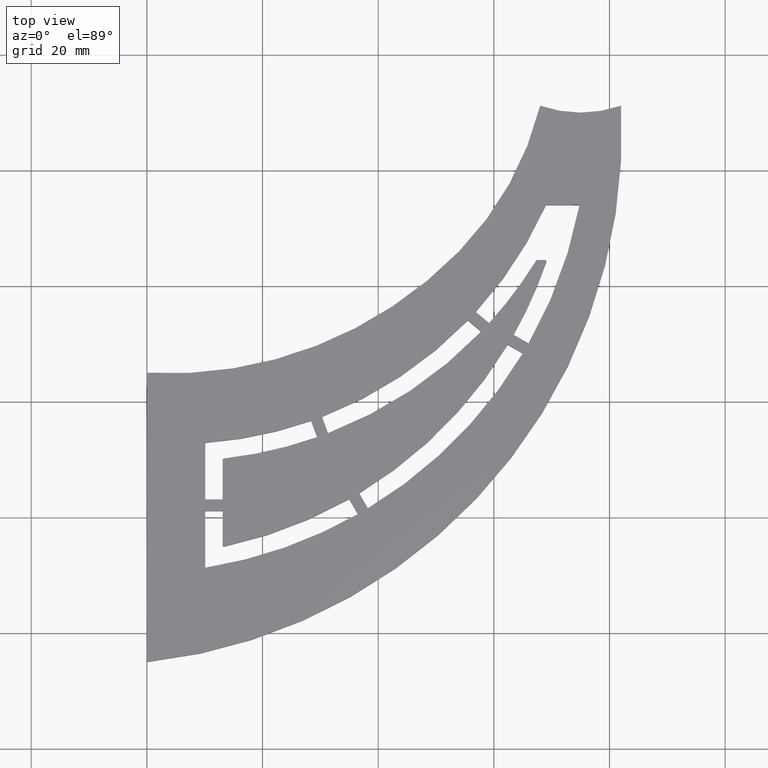
[diagram: clean part render]
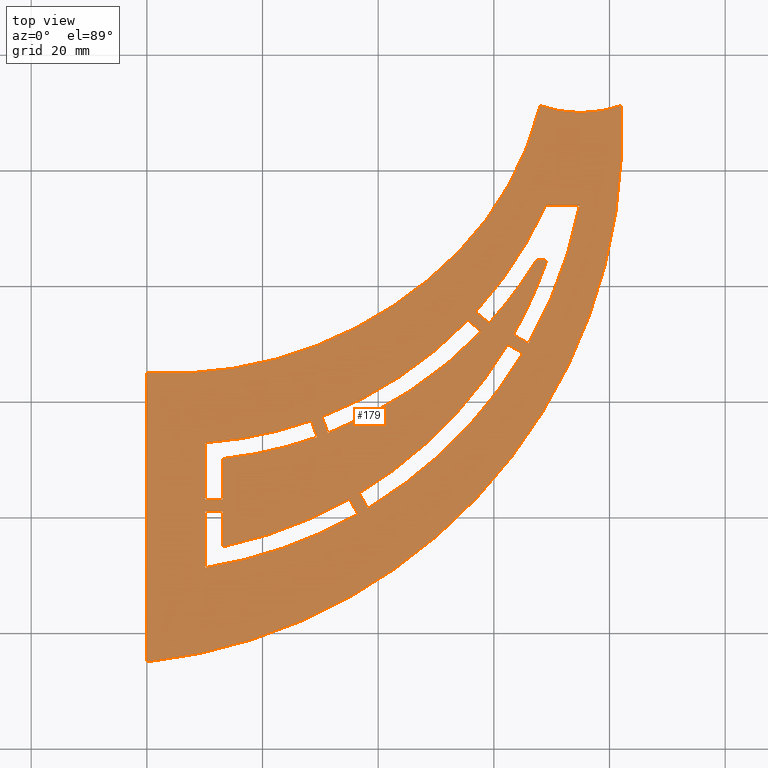
[diagram: same view with one face highlighted and labeled with its STEP entity id]
A machine part, top view. The second image highlights one B-rep face of the part: STEP entity #179.
In plain terms, the highlighted planar face has unit normal (-0, 0, 1).
Its self-contained STEP definition (entity closure, byte-faithful):
#9 = DIRECTION ( 'NONE',  ( 0.7683469671252992628, -0.6400335445188434225, 0.000000000000000000 ) ) ;
#10 = LINE ( 'NONE', #7282, #5770 ) ;
#41 = DIRECTION ( 'NONE',  ( 1.000000000000000000, 0.000000000000000000, 0.000000000000000000 ) ) ;
#70 = AXIS2_PLACEMENT_3D ( 'NONE', #876, #833, #13025 ) ;
#149 = DIRECTION ( 'NONE',  ( 1.000000000000000000, 0.000000000000000000, 0.000000000000000000 ) ) ;
#179 = ADVANCED_FACE ( 'NONE', ( #3742, #5994, #5669, #7091, #532, #6308 ), #4835, .T. ) ;
#285 = VERTEX_POINT ( 'NONE', #1906 ) ;
#294 = ORIENTED_EDGE ( 'NONE', *, *, #1183, .T. ) ;
#468 = DIRECTION ( 'NONE',  ( -0.000000000000000000, 0.000000000000000000, 1.000000000000000000 ) ) ;
#532 = FACE_BOUND ( 'NONE', #7960, .T. ) ;
#535 = CARTESIAN_POINT ( 'NONE',  ( 29.35089577854461496, 16.94574757869946424, 2.000000000000000000 ) ) ;
#566 = CIRCLE ( 'NONE', #2564, 69.99999999999997158 ) ;
#629 = VECTOR ( 'NONE', #12655, 1000.000000000000000 ) ;
#639 = CIRCLE ( 'NONE', #12659, 78.49999999999998579 ) ;
#687 = VERTEX_POINT ( 'NONE', #2851 ) ;
#703 = VERTEX_POINT ( 'NONE', #3801 ) ;
#710 = CIRCLE ( 'NONE', #6989, 75.50000000277350409 ) ;
#804 = CARTESIAN_POINT ( 'NONE',  ( 57.81112312110057871, 32.14023218370341795, 2.000000000000000000 ) ) ;
#833 = DIRECTION ( 'NONE',  ( -0.000000000000000000, 0.000000000000000000, 1.000000000000000000 ) ) ;
#876 = CARTESIAN_POINT ( 'NONE',  ( 13.35000000000025011, 9.933913978657852084, 2.000000000000000000 ) ) ;
#921 = EDGE_CURVE ( 'NONE', #5424, #11897, #2658, .T. ) ;
#958 = CARTESIAN_POINT ( 'NONE',  ( 13.32211758407314939, 10.18235425494592938, 2.000000000000000000 ) ) ;
#1004 = EDGE_CURVE ( 'NONE', #5699, #8205, #9367, .T. ) ;
#1132 = CARTESIAN_POINT ( 'NONE',  ( 32.31563232537948238, 11.89347446114490836, 2.000000000000000000 ) ) ;
#1149 = ORIENTED_EDGE ( 'NONE', *, *, #1004, .T. ) ;
#1164 = ORIENTED_EDGE ( 'NONE', *, *, #1327, .F. ) ;
#1183 = EDGE_CURVE ( 'NONE', #9576, #2364, #7441, .T. ) ;
#1249 = DIRECTION ( 'NONE',  ( 1.000000000000000000, 0.000000000000000000, 0.000000000000000000 ) ) ;
#1269 = DIRECTION ( 'NONE',  ( -0.5000000000000005551, 0.8660254037844382635, 0.000000000000000000 ) ) ;
#1327 = EDGE_CURVE ( 'NONE', #12236, #687, #4574, .T. ) ;
#1342 = VERTEX_POINT ( 'NONE', #8229 ) ;
#1421 = LINE ( 'NONE', #1508, #5745 ) ;
#1501 = VERTEX_POINT ( 'NONE', #9712 ) ;
#1508 = CARTESIAN_POINT ( 'NONE',  ( 13.09999999999989306, -4.356155149773243477E-13, 2.000000000000000000 ) ) ;
#1609 = DIRECTION ( 'NONE',  ( -0.000000000000000000, 0.000000000000000000, 1.000000000000000000 ) ) ;
#1697 = LINE ( 'NONE', #8212, #6181 ) ;
#1712 = CIRCLE ( 'NONE', #11845, 78.50000000000000000 ) ;
#1763 = EDGE_CURVE ( 'NONE', #4784, #8075, #1697, .T. ) ;
#1803 = AXIS2_PLACEMENT_3D ( 'NONE', #13196, #7146, #11136 ) ;
#1832 = VECTOR ( 'NONE', #1889, 1000.000000000000000 ) ;
#1840 = CARTESIAN_POINT ( 'NONE',  ( 81.99999999999997158, 71.18900302333739205, 2.000000000000000000 ) ) ;
#1889 = DIRECTION ( 'NONE',  ( 0.8660254037844365982, -0.5000000000000036637, 0.000000000000000000 ) ) ;
#1906 = CARTESIAN_POINT ( 'NONE',  ( 65.00000000000001421, 28.36591682216534593, 2.000000000000000000 ) ) ;
#1910 = VERTEX_POINT ( 'NONE', #13230 ) ;
#2056 = CIRCLE ( 'NONE', #12426, 70.00000000000000000 ) ;
#2060 = EDGE_CURVE ( 'NONE', #5699, #285, #5066, .T. ) ;
#2077 = DIRECTION ( 'NONE',  ( -0.000000000000000000, 0.000000000000000000, 1.000000000000000000 ) ) ;
#2105 = CARTESIAN_POINT ( 'NONE',  ( 62.40149663089107435, 29.86616344181055283, 2.000000000000000000 ) ) ;
#2156 = VERTEX_POINT ( 'NONE', #958 ) ;
#2159 = DIRECTION ( 'NONE',  ( 0.7683469671253021493, -0.6400335445188398698, 0.000000000000000000 ) ) ;
#2167 = EDGE_CURVE ( 'NONE', #1342, #12236, #8083, .T. ) ;
#2196 = VERTEX_POINT ( 'NONE', #3885 ) ;
#2198 = ORIENTED_EDGE ( 'NONE', *, *, #3383, .T. ) ;
#2286 = CARTESIAN_POINT ( 'NONE',  ( 5.180452133363093736, 82.72691493104838401, 2.000000000000000000 ) ) ;
#2319 = VERTEX_POINT ( 'NONE', #12378 ) ;
#2326 = VERTEX_POINT ( 'NONE', #10431 ) ;
#2364 = VERTEX_POINT ( 'NONE', #4208 ) ;
#2389 = EDGE_CURVE ( 'NONE', #12120, #4437, #5542, .T. ) ;
#2403 = EDGE_CURVE ( 'NONE', #2196, #9903, #10359, .T. ) ;
#2517 = ORIENTED_EDGE ( 'NONE', *, *, #11708, .F. ) ;
#2524 = ORIENTED_EDGE ( 'NONE', *, *, #5312, .F. ) ;
#2564 = AXIS2_PLACEMENT_3D ( 'NONE', #10817, #1609, #3793 ) ;
#2568 = EDGE_CURVE ( 'NONE', #4784, #1501, #3128, .T. ) ;
#2586 = DIRECTION ( 'NONE',  ( 3.325309274636090619E-14, 1.000000000000000000, 0.000000000000000000 ) ) ;
#2658 = LINE ( 'NONE', #11905, #10194 ) ;
#2723 = DIRECTION ( 'NONE',  ( 1.000000000000000000, 0.000000000000000000, 0.000000000000000000 ) ) ;
#2767 = ORIENTED_EDGE ( 'NONE', *, *, #7306, .F. ) ;
#2851 = CARTESIAN_POINT ( 'NONE',  ( 67.29820635819267238, 44.38132052877488576, 2.000000000000000000 ) ) ;
#3010 = ORIENTED_EDGE ( 'NONE', *, *, #2167, .F. ) ;
#3012 = ORIENTED_EDGE ( 'NONE', *, *, #2389, .F. ) ;
#3051 = ORIENTED_EDGE ( 'NONE', *, *, #8481, .F. ) ;
#3064 = CARTESIAN_POINT ( 'NONE',  ( 38.22629435678329912, 1.573106303765562597, 2.000000000000000000 ) ) ;
#3128 = CIRCLE ( 'NONE', #7107, 75.50000000277351830 ) ;
#3174 = DIRECTION ( 'NONE',  ( -0.000000000000000000, 0.000000000000000000, 1.000000000000000000 ) ) ;
#3380 = DIRECTION ( 'NONE',  ( 1.000000000000000000, 0.000000000000000000, 0.000000000000000000 ) ) ;
#3383 = EDGE_CURVE ( 'NONE', #8205, #8633, #710, .T. ) ;
#3478 = ORIENTED_EDGE ( 'NONE', *, *, #4603, .T. ) ;
#3499 = AXIS2_PLACEMENT_3D ( 'NONE', #7904, #3896, #9980 ) ;
#3526 = DIRECTION ( 'NONE',  ( 1.000000000000000000, 0.000000000000000000, 0.000000000000000000 ) ) ;
#3627 = EDGE_CURVE ( 'NONE', #2326, #3959, #13028, .T. ) ;
#3666 = DIRECTION ( 'NONE',  ( -0.000000000000000000, 0.000000000000000000, 1.000000000000000000 ) ) ;
#3742 = FACE_BOUND ( 'NONE', #5103, .T. ) ;
#3793 = DIRECTION ( 'NONE',  ( 1.000000000000000000, 0.000000000000000000, 0.000000000000000000 ) ) ;
#3801 = CARTESIAN_POINT ( 'NONE',  ( 30.29382913315705039, 17.38689430305788974, 2.000000000000000000 ) ) ;
#3814 = DIRECTION ( 'NONE',  ( 0.3453912201918108438, -0.9384587923901678286, 0.000000000000000000 ) ) ;
#3822 = DIRECTION ( 'NONE',  ( 1.000000000000000000, 0.000000000000000000, 0.000000000000000000 ) ) ;
#3885 = CARTESIAN_POINT ( 'NONE',  ( 10.09999999999999964, 3.100000000000001865, 2.000000000000000000 ) ) ;
#3896 = DIRECTION ( 'NONE',  ( -0.000000000000000000, 0.000000000000000000, 1.000000000000000000 ) ) ;
#3933 = EDGE_CURVE ( 'NONE', #1910, #4926, #10945, .T. ) ;
#3952 = DIRECTION ( 'NONE',  ( 1.000000000000000000, 0.000000000000000000, 0.000000000000000000 ) ) ;
#3959 = VERTEX_POINT ( 'NONE', #6164 ) ;
#4046 = CARTESIAN_POINT ( 'NONE',  ( 31.33010419547926872, 14.57124240828424711, 2.000000000000000000 ) ) ;
#4057 = LINE ( 'NONE', #13102, #1832 ) ;
#4070 = DIRECTION ( 'NONE',  ( 1.000000000000000000, 0.000000000000000000, 0.000000000000000000 ) ) ;
#4120 = VERTEX_POINT ( 'NONE', #8192 ) ;
#4167 = DIRECTION ( 'NONE',  ( 0.3453912201917184177, -0.9384587923902019124, 0.000000000000000000 ) ) ;
#4208 = CARTESIAN_POINT ( 'NONE',  ( 13.40190804038342876, -5.036072685718692377, 2.000000000000000000 ) ) ;
#4211 = AXIS2_PLACEMENT_3D ( 'NONE', #6155, #12363, #1249 ) ;
#4248 = EDGE_CURVE ( 'NONE', #8633, #285, #4057, .T. ) ;
#4260 = EDGE_CURVE ( 'NONE', #703, #12120, #12065, .T. ) ;
#4290 = LINE ( 'NONE', #9479, #12123 ) ;
#4297 = AXIS2_PLACEMENT_3D ( 'NONE', #6188, #8339, #10437 ) ;
#4386 = DIRECTION ( 'NONE',  ( -1.770125995894700956E-16, 1.000000000000000000, 0.000000000000000000 ) ) ;
#4437 = VERTEX_POINT ( 'NONE', #804 ) ;
#4468 = VERTEX_POINT ( 'NONE', #13137 ) ;
#4497 = CARTESIAN_POINT ( 'NONE',  ( -2.274320155918185815, 68.81855391245915143, 2.000000000000000000 ) ) ;
#4511 = CARTESIAN_POINT ( 'NONE',  ( 5.180452133363093736, 82.72691493104838401, 2.000000000000000000 ) ) ;
#4530 = DIRECTION ( 'NONE',  ( 1.000000000000000000, 0.000000000000000000, 0.000000000000000000 ) ) ;
#4540 = CARTESIAN_POINT ( 'NONE',  ( 10.09999999999999787, 12.90000000000000391, 2.000000000000000000 ) ) ;
#4574 = CIRCLE ( 'NONE', #12834, 73.00000000000001421 ) ;
#4603 = EDGE_CURVE ( 'NONE', #4468, #4926, #7088, .T. ) ;
#4739 = VECTOR ( 'NONE', #9, 999.9999999999998863 ) ;
#4784 = VERTEX_POINT ( 'NONE', #7094 ) ;
#4808 = CIRCLE ( 'NONE', #70, 0.2500000000000296985 ) ;
#4835 = PLANE ( 'NONE',  #3499 ) ;
#4926 = VERTEX_POINT ( 'NONE', #1840 ) ;
#5058 = CARTESIAN_POINT ( 'NONE',  ( 40.76751774609838463, 48.94055770309599041, 2.000000000000000000 ) ) ;
#5064 = CARTESIAN_POINT ( 'NONE',  ( -2.274320155918185815, 68.81855391245915143, 2.000000000000000000 ) ) ;
#5066 = CIRCLE ( 'NONE', #11233, 78.49999999999998579 ) ;
#5099 = ORIENTED_EDGE ( 'NONE', *, *, #11429, .F. ) ;
#5103 = EDGE_LOOP ( 'NONE', ( #6776, #8003, #2517, #294, #11101, #2767, #7338 ) ) ;
#5125 = CIRCLE ( 'NONE', #1803, 70.00000000000002842 ) ;
#5141 = EDGE_CURVE ( 'NONE', #1501, #12543, #11895, .T. ) ;
#5149 = CARTESIAN_POINT ( 'NONE',  ( 10.09999999999999964, 1.787827255853647886E-15, 2.000000000000000000 ) ) ;
#5182 = VERTEX_POINT ( 'NONE', #9557 ) ;
#5193 = VERTEX_POINT ( 'NONE', #5445 ) ;
#5203 = AXIS2_PLACEMENT_3D ( 'NONE', #7603, #9941, #3952 ) ;
#5269 = CIRCLE ( 'NONE', #4297, 55.00000000000000711 ) ;
#5312 = EDGE_CURVE ( 'NONE', #2156, #11248, #7076, .T. ) ;
#5323 = CARTESIAN_POINT ( 'NONE',  ( 13.10000000000022169, 9.933913978657852084, 2.000000000000000000 ) ) ;
#5405 = ORIENTED_EDGE ( 'NONE', *, *, #8080, .T. ) ;
#5419 = DIRECTION ( 'NONE',  ( 3.552713678800588651E-14, 1.000000000000000000, 0.000000000000000000 ) ) ;
#5424 = VERTEX_POINT ( 'NONE', #11501 ) ;
#5445 = CARTESIAN_POINT ( 'NONE',  ( 53.97457268643530881, 45.99999999999996447, 2.000000000000000000 ) ) ;
#5514 = CARTESIAN_POINT ( 'NONE',  ( 0.000000000000000000, 1.100000000000000311, 2.000000000000000000 ) ) ;
#5542 = CIRCLE ( 'NONE', #10129, 73.00000000000001421 ) ;
#5555 = ORIENTED_EDGE ( 'NONE', *, *, #2060, .F. ) ;
#5656 = DIRECTION ( 'NONE',  ( -0.000000000000000000, 0.000000000000000000, 1.000000000000000000 ) ) ;
#5669 = FACE_BOUND ( 'NONE', #9391, .T. ) ;
#5699 = VERTEX_POINT ( 'NONE', #3064 ) ;
#5745 = VECTOR ( 'NONE', #2586, 1000.000000000000000 ) ;
#5766 = CARTESIAN_POINT ( 'NONE',  ( 68.85196653942389844, 44.24999999999997868, 2.000000000000000000 ) ) ;
#5768 = VECTOR ( 'NONE', #1269, 1000.000000000000114 ) ;
#5770 = VECTOR ( 'NONE', #2159, 1000.000000000000000 ) ;
#5775 = DIRECTION ( 'NONE',  ( -0.000000000000000000, 0.000000000000000000, 1.000000000000000000 ) ) ;
#5915 = VECTOR ( 'NONE', #3814, 1000.000000000000114 ) ;
#5971 = VERTEX_POINT ( 'NONE', #8207 ) ;
#5994 = FACE_OUTER_BOUND ( 'NONE', #7337, .T. ) ;
#6091 = CARTESIAN_POINT ( 'NONE',  ( -2.274320155918185815, 68.81855391245915143, 2.000000000000000000 ) ) ;
#6105 = EDGE_CURVE ( 'NONE', #11500, #5193, #566, .T. ) ;
#6155 = CARTESIAN_POINT ( 'NONE',  ( 67.51093839320922996, 44.24999999999997868, 2.000000000000000000 ) ) ;
#6164 = CARTESIAN_POINT ( 'NONE',  ( 10.09999999999999964, 1.100000000000000311, 2.000000000000000000 ) ) ;
#6176 = CARTESIAN_POINT ( 'NONE',  ( 5.180452133363093736, 82.72691493104838401, 2.000000000000000000 ) ) ;
#6181 = VECTOR ( 'NONE', #7191, 1000.000000000000000 ) ;
#6188 = CARTESIAN_POINT ( 'NONE',  ( 14.61404249810564338, 84.41547426875771976, 2.000000000000000000 ) ) ;
#6211 = LINE ( 'NONE', #6438, #9047 ) ;
#6308 = FACE_BOUND ( 'NONE', #12403, .T. ) ;
#6389 = CARTESIAN_POINT ( 'NONE',  ( -4.481368979606760207E-16, 3.100000000000000977, 2.000000000000000000 ) ) ;
#6438 = CARTESIAN_POINT ( 'NONE',  ( 13.10000000000004228, 4.898666193980483286E-13, 2.000000000000000000 ) ) ;
#6445 = DIRECTION ( 'NONE',  ( -0.000000000000000000, 0.000000000000000000, 1.000000000000000000 ) ) ;
#6485 = VECTOR ( 'NONE', #12041, 1000.000000000000000 ) ;
#6491 = CARTESIAN_POINT ( 'NONE',  ( 1.998401444325281773E-12, 24.99999999999996803, 2.000000000000000000 ) ) ;
#6538 = DIRECTION ( 'NONE',  ( -0.000000000000000000, 0.000000000000000000, 1.000000000000000000 ) ) ;
#6555 = EDGE_CURVE ( 'NONE', #2156, #11410, #4808, .T. ) ;
#6628 = DIRECTION ( 'NONE',  ( 1.000000000000000000, 0.000000000000000000, 0.000000000000000000 ) ) ;
#6776 = ORIENTED_EDGE ( 'NONE', *, *, #3627, .T. ) ;
#6798 = VERTEX_POINT ( 'NONE', #12569 ) ;
#6961 = ORIENTED_EDGE ( 'NONE', *, *, #8670, .F. ) ;
#6989 = AXIS2_PLACEMENT_3D ( 'NONE', #6091, #10511, #7619 ) ;
#7001 = CARTESIAN_POINT ( 'NONE',  ( 74.81433309437242940, 54.00000000000000711, 2.000000000000000000 ) ) ;
#7010 = AXIS2_PLACEMENT_3D ( 'NONE', #4497, #6538, #4530 ) ;
#7055 = EDGE_CURVE ( 'NONE', #703, #5971, #5125, .T. ) ;
#7076 = CIRCLE ( 'NONE', #8961, 72.99999999999998579 ) ;
#7088 = CIRCLE ( 'NONE', #5203, 91.99999999999938893 ) ;
#7091 = FACE_BOUND ( 'NONE', #8089, .T. ) ;
#7094 = CARTESIAN_POINT ( 'NONE',  ( 63.41057880476433439, 31.59297065384886949, 2.000000000000000000 ) ) ;
#7107 = AXIS2_PLACEMENT_3D ( 'NONE', #8945, #11023, #3822 ) ;
#7146 = DIRECTION ( 'NONE',  ( -0.000000000000000000, 0.000000000000000000, 1.000000000000000000 ) ) ;
#7191 = DIRECTION ( 'NONE',  ( 0.8660254037844363761, -0.5000000000000041078, 0.000000000000000000 ) ) ;
#7282 = CARTESIAN_POINT ( 'NONE',  ( 39.48745065706042112, 47.40386376884549691, 2.000000000000000000 ) ) ;
#7306 = EDGE_CURVE ( 'NONE', #6798, #8861, #8785, .T. ) ;
#7337 = EDGE_LOOP ( 'NONE', ( #8130, #5099, #3478, #11323, #10711 ) ) ;
#7338 = ORIENTED_EDGE ( 'NONE', *, *, #12533, .F. ) ;
#7400 = DIRECTION ( 'NONE',  ( -3.739439842733181748E-14, 1.000000000000000000, 0.000000000000000000 ) ) ;
#7407 = ORIENTED_EDGE ( 'NONE', *, *, #4248, .T. ) ;
#7441 = CIRCLE ( 'NONE', #10301, 0.2500000000000366374 ) ;
#7503 = AXIS2_PLACEMENT_3D ( 'NONE', #8488, #9592, #3380 ) ;
#7505 = CARTESIAN_POINT ( 'NONE',  ( 2.302567471051777078E-13, 44.50000000000035527, 2.000000000000000000 ) ) ;
#7520 = AXIS2_PLACEMENT_3D ( 'NONE', #2286, #6445, #149 ) ;
#7537 = ORIENTED_EDGE ( 'NONE', *, *, #10252, .F. ) ;
#7603 = CARTESIAN_POINT ( 'NONE',  ( -9.878794471127335441, 66.46807869304582539, 2.000000000000000000 ) ) ;
#7616 = CIRCLE ( 'NONE', #4211, 0.2500000000000279776 ) ;
#7619 = DIRECTION ( 'NONE',  ( 1.000000000000000000, 0.000000000000000000, 0.000000000000000000 ) ) ;
#7773 = CARTESIAN_POINT ( 'NONE',  ( 30.43871474060331650, 11.20269202076643822, 2.000000000000000000 ) ) ;
#7786 = CARTESIAN_POINT ( 'NONE',  ( 34.99996197542167664, 3.161277910388546442, 2.000000000000000000 ) ) ;
#7792 = DIRECTION ( 'NONE',  ( -0.000000000000000000, 0.000000000000000000, 1.000000000000000000 ) ) ;
#7904 = CARTESIAN_POINT ( 'NONE',  ( 0.000000000000000000, 0.000000000000000000, 2.000000000000000000 ) ) ;
#7960 = EDGE_LOOP ( 'NONE', ( #3012, #9524, #10629, #5405 ) ) ;
#8003 = ORIENTED_EDGE ( 'NONE', *, *, #9119, .T. ) ;
#8057 = EDGE_CURVE ( 'NONE', #9903, #5182, #11998, .T. ) ;
#8075 = VERTEX_POINT ( 'NONE', #12436 ) ;
#8080 = EDGE_CURVE ( 'NONE', #5971, #4437, #10, .T. ) ;
#8083 = LINE ( 'NONE', #5058, #4739 ) ;
#8089 = EDGE_LOOP ( 'NONE', ( #1149, #2198, #7407, #5555 ) ) ;
#8130 = ORIENTED_EDGE ( 'NONE', *, *, #6105, .F. ) ;
#8133 = LINE ( 'NONE', #6389, #13275 ) ;
#8192 = CARTESIAN_POINT ( 'NONE',  ( 13.10000000000000142, 1.100000000000000311, 2.000000000000000000 ) ) ;
#8205 = VERTEX_POINT ( 'NONE', #8603 ) ;
#8207 = CARTESIAN_POINT ( 'NONE',  ( 55.50000000000000000, 34.06539931041405112, 2.000000000000000000 ) ) ;
#8212 = CARTESIAN_POINT ( 'NONE',  ( 29.53280228481610692, 51.15231404718716846, 2.000000000000000000 ) ) ;
#8229 = CARTESIAN_POINT ( 'NONE',  ( 56.87206340631111345, 35.52546025000667385, 2.000000000000000000 ) ) ;
#8337 = CARTESIAN_POINT ( 'NONE',  ( 27.61884497097577551, 15.94574757869942871, 2.000000000000000000 ) ) ;
#8339 = DIRECTION ( 'NONE',  ( -0.000000000000000000, 0.000000000000000000, 1.000000000000000000 ) ) ;
#8419 = DIRECTION ( 'NONE',  ( 1.000000000000000000, 1.445602896647341382E-16, 0.000000000000000000 ) ) ;
#8481 = EDGE_CURVE ( 'NONE', #8075, #11897, #639, .T. ) ;
#8488 = CARTESIAN_POINT ( 'NONE',  ( 74.99999999999998579, 91.20000000000000284, 2.000000000000000000 ) ) ;
#8594 = LINE ( 'NONE', #7773, #5915 ) ;
#8603 = CARTESIAN_POINT ( 'NONE',  ( 36.72602755165311095, 4.171644635160063785, 2.000000000000000000 ) ) ;
#8633 = VERTEX_POINT ( 'NONE', #2105 ) ;
#8670 = EDGE_CURVE ( 'NONE', #2196, #2319, #8133, .T. ) ;
#8730 = CARTESIAN_POINT ( 'NONE',  ( -2.274320155918185815, 68.81855391245915143, 2.000000000000000000 ) ) ;
#8785 = LINE ( 'NONE', #8337, #5768 ) ;
#8861 = VERTEX_POINT ( 'NONE', #7786 ) ;
#8919 = CARTESIAN_POINT ( 'NONE',  ( 67.51093839320922996, 44.50000000000000711, 2.000000000000000000 ) ) ;
#8945 = CARTESIAN_POINT ( 'NONE',  ( -2.274320155918185815, 68.81855391245915143, 2.000000000000000000 ) ) ;
#8961 = AXIS2_PLACEMENT_3D ( 'NONE', #4511, #468, #3526 ) ;
#9047 = VECTOR ( 'NONE', #7400, 1000.000000000000000 ) ;
#9119 = EDGE_CURVE ( 'NONE', #3959, #4120, #11684, .T. ) ;
#9266 = CARTESIAN_POINT ( 'NONE',  ( 5.180452133363093736, 82.72691493104838401, 2.000000000000000000 ) ) ;
#9301 = CARTESIAN_POINT ( 'NONE',  ( 59.17939240146328927, 33.60345363278328534, 2.000000000000000000 ) ) ;
#9324 = VECTOR ( 'NONE', #4167, 999.9999999999998863 ) ;
#9345 = ORIENTED_EDGE ( 'NONE', *, *, #2568, .T. ) ;
#9367 = LINE ( 'NONE', #535, #9695 ) ;
#9378 = ORIENTED_EDGE ( 'NONE', *, *, #8057, .T. ) ;
#9391 = EDGE_LOOP ( 'NONE', ( #2524, #9399, #9869, #6961, #12085, #9378, #11902 ) ) ;
#9399 = ORIENTED_EDGE ( 'NONE', *, *, #6555, .T. ) ;
#9406 = DIRECTION ( 'NONE',  ( 1.000000000000000000, 0.000000000000000000, 0.000000000000000000 ) ) ;
#9412 = CIRCLE ( 'NONE', #7010, 75.50000000277351830 ) ;
#9479 = CARTESIAN_POINT ( 'NONE',  ( 1.110223024625135740E-12, -3.944304526105082560E-26, 2.000000000000000000 ) ) ;
#9488 = EDGE_CURVE ( 'NONE', #2364, #8861, #9412, .T. ) ;
#9524 = ORIENTED_EDGE ( 'NONE', *, *, #4260, .F. ) ;
#9557 = CARTESIAN_POINT ( 'NONE',  ( 28.41691154838158795, 16.69611186267583491, 2.000000000000000000 ) ) ;
#9576 = VERTEX_POINT ( 'NONE', #11686 ) ;
#9592 = DIRECTION ( 'NONE',  ( -0.000000000000000000, 0.000000000000000000, 1.000000000000000000 ) ) ;
#9667 = DIRECTION ( 'NONE',  ( -0.5000000000000017764, 0.8660254037844377084, 0.000000000000000000 ) ) ;
#9695 = VECTOR ( 'NONE', #9667, 999.9999999999998863 ) ;
#9712 = CARTESIAN_POINT ( 'NONE',  ( 69.08826649521368779, 44.16837689730377292, 2.000000000000000000 ) ) ;
#9746 = CARTESIAN_POINT ( 'NONE',  ( -2.274320155918185815, 68.81855391245915143, 2.000000000000000000 ) ) ;
#9869 = ORIENTED_EDGE ( 'NONE', *, *, #10682, .F. ) ;
#9903 = VERTEX_POINT ( 'NONE', #4540 ) ;
#9941 = DIRECTION ( 'NONE',  ( -0.000000000000000000, 0.000000000000000000, 1.000000000000000000 ) ) ;
#9951 = EDGE_CURVE ( 'NONE', #5182, #11248, #8594, .T. ) ;
#9980 = DIRECTION ( 'NONE',  ( 1.000000000000000000, 0.000000000000000000, 0.000000000000000000 ) ) ;
#9993 = CARTESIAN_POINT ( 'NONE',  ( 13.35000000000025189, -4.791520942025062624, 2.000000000000000000 ) ) ;
#10068 = EDGE_CURVE ( 'NONE', #5193, #1910, #5269, .T. ) ;
#10129 = AXIS2_PLACEMENT_3D ( 'NONE', #6176, #3174, #41 ) ;
#10130 = CARTESIAN_POINT ( 'NONE',  ( 10.09999999999999964, 0.000000000000000000, 2.000000000000000000 ) ) ;
#10191 = AXIS2_PLACEMENT_3D ( 'NONE', #5766, #7792, #9406 ) ;
#10194 = VECTOR ( 'NONE', #6628, 1000.000000000000000 ) ;
#10252 = EDGE_CURVE ( 'NONE', #10473, #12543, #11502, .T. ) ;
#10301 = AXIS2_PLACEMENT_3D ( 'NONE', #9993, #12159, #13167 ) ;
#10359 = LINE ( 'NONE', #5149, #12884 ) ;
#10431 = CARTESIAN_POINT ( 'NONE',  ( 10.09999999999999964, -8.700000000000001066, 2.000000000000000000 ) ) ;
#10437 = DIRECTION ( 'NONE',  ( 1.000000000000000000, 0.000000000000000000, 0.000000000000000000 ) ) ;
#10473 = VERTEX_POINT ( 'NONE', #8919 ) ;
#10511 = DIRECTION ( 'NONE',  ( -0.000000000000000000, 0.000000000000000000, 1.000000000000000000 ) ) ;
#10629 = ORIENTED_EDGE ( 'NONE', *, *, #7055, .T. ) ;
#10682 = EDGE_CURVE ( 'NONE', #2319, #11410, #1421, .T. ) ;
#10711 = ORIENTED_EDGE ( 'NONE', *, *, #10068, .F. ) ;
#10811 = DIRECTION ( 'NONE',  ( 1.000000000000000000, 0.000000000000000000, 0.000000000000000000 ) ) ;
#10817 = CARTESIAN_POINT ( 'NONE',  ( 3.879352446742994065, 94.89242179660072907, 2.000000000000000000 ) ) ;
#10899 = CARTESIAN_POINT ( 'NONE',  ( 5.180452133363093736, 82.72691493104838401, 2.000000000000000000 ) ) ;
#10945 = CIRCLE ( 'NONE', #7503, 21.19999999999999574 ) ;
#10962 = ORIENTED_EDGE ( 'NONE', *, *, #921, .T. ) ;
#11023 = DIRECTION ( 'NONE',  ( -0.000000000000000000, 0.000000000000000000, 1.000000000000000000 ) ) ;
#11065 = ORIENTED_EDGE ( 'NONE', *, *, #1763, .F. ) ;
#11101 = ORIENTED_EDGE ( 'NONE', *, *, #9488, .T. ) ;
#11103 = ORIENTED_EDGE ( 'NONE', *, *, #11178, .T. ) ;
#11136 = DIRECTION ( 'NONE',  ( 1.000000000000000000, 0.000000000000000000, 0.000000000000000000 ) ) ;
#11178 = EDGE_CURVE ( 'NONE', #1342, #5424, #2056, .T. ) ;
#11182 = VECTOR ( 'NONE', #11585, 1000.000000000000000 ) ;
#11233 = AXIS2_PLACEMENT_3D ( 'NONE', #8730, #3666, #10811 ) ;
#11244 = DIRECTION ( 'NONE',  ( 1.000000000000000000, 0.000000000000000000, 0.000000000000000000 ) ) ;
#11248 = VERTEX_POINT ( 'NONE', #13015 ) ;
#11294 = DIRECTION ( 'NONE',  ( -0.000000000000000000, 0.000000000000000000, 1.000000000000000000 ) ) ;
#11323 = ORIENTED_EDGE ( 'NONE', *, *, #3933, .F. ) ;
#11410 = VERTEX_POINT ( 'NONE', #5323 ) ;
#11429 = EDGE_CURVE ( 'NONE', #4468, #11500, #4290, .T. ) ;
#11500 = VERTEX_POINT ( 'NONE', #6491 ) ;
#11501 = CARTESIAN_POINT ( 'NONE',  ( 69.01433309437241803, 54.00000000000000711, 2.000000000000000000 ) ) ;
#11502 = LINE ( 'NONE', #7505, #11182 ) ;
#11585 = DIRECTION ( 'NONE',  ( 1.000000000000000000, -5.174308923711817413E-15, 0.000000000000000000 ) ) ;
#11628 = EDGE_CURVE ( 'NONE', #10473, #687, #7616, .T. ) ;
#11684 = LINE ( 'NONE', #5514, #629 ) ;
#11686 = CARTESIAN_POINT ( 'NONE',  ( 13.10000000000022169, -4.791520942025062624, 2.000000000000000000 ) ) ;
#11708 = EDGE_CURVE ( 'NONE', #9576, #4120, #6211, .T. ) ;
#11845 = AXIS2_PLACEMENT_3D ( 'NONE', #5064, #2077, #4070 ) ;
#11895 = CIRCLE ( 'NONE', #10191, 0.2500000000000140998 ) ;
#11897 = VERTEX_POINT ( 'NONE', #7001 ) ;
#11902 = ORIENTED_EDGE ( 'NONE', *, *, #9951, .T. ) ;
#11905 = CARTESIAN_POINT ( 'NONE',  ( 0.000000000000000000, 54.00000000000000711, 2.000000000000000000 ) ) ;
#11998 = CIRCLE ( 'NONE', #7520, 69.99999999999998579 ) ;
#12041 = DIRECTION ( 'NONE',  ( 0.000000000000000000, 1.000000000000000000, -0.000000000000000000 ) ) ;
#12065 = LINE ( 'NONE', #1132, #9324 ) ;
#12085 = ORIENTED_EDGE ( 'NONE', *, *, #2403, .T. ) ;
#12120 = VERTEX_POINT ( 'NONE', #4046 ) ;
#12123 = VECTOR ( 'NONE', #5419, 1000.000000000000000 ) ;
#12159 = DIRECTION ( 'NONE',  ( -0.000000000000000000, 0.000000000000000000, 1.000000000000000000 ) ) ;
#12180 = CARTESIAN_POINT ( 'NONE',  ( 68.85196653942389844, 44.50000000000000000, 2.000000000000000000 ) ) ;
#12236 = VERTEX_POINT ( 'NONE', #9301 ) ;
#12363 = DIRECTION ( 'NONE',  ( -0.000000000000000000, 0.000000000000000000, 1.000000000000000000 ) ) ;
#12378 = CARTESIAN_POINT ( 'NONE',  ( 13.09999999999999609, 3.100000000000002309, 2.000000000000000000 ) ) ;
#12403 = EDGE_LOOP ( 'NONE', ( #9345, #12890, #7537, #13200, #1164, #3010, #11103, #10962, #3051, #11065 ) ) ;
#12426 = AXIS2_PLACEMENT_3D ( 'NONE', #10899, #5656, #12828 ) ;
#12436 = CARTESIAN_POINT ( 'NONE',  ( 66.00873501796486664, 30.09292446476082361, 2.000000000000000000 ) ) ;
#12533 = EDGE_CURVE ( 'NONE', #2326, #6798, #1712, .T. ) ;
#12543 = VERTEX_POINT ( 'NONE', #12180 ) ;
#12569 = CARTESIAN_POINT ( 'NONE',  ( 36.49999999999999289, 0.5631358385336567851, 2.000000000000000000 ) ) ;
#12655 = DIRECTION ( 'NONE',  ( 1.000000000000000000, 0.000000000000000000, 0.000000000000000000 ) ) ;
#12659 = AXIS2_PLACEMENT_3D ( 'NONE', #9746, #5775, #2723 ) ;
#12828 = DIRECTION ( 'NONE',  ( 1.000000000000000000, 0.000000000000000000, 0.000000000000000000 ) ) ;
#12834 = AXIS2_PLACEMENT_3D ( 'NONE', #9266, #11294, #11244 ) ;
#12884 = VECTOR ( 'NONE', #4386, 1000.000000000000000 ) ;
#12890 = ORIENTED_EDGE ( 'NONE', *, *, #5141, .T. ) ;
#13015 = CARTESIAN_POINT ( 'NONE',  ( 29.45318661070406918, 13.88045996790233794, 2.000000000000000000 ) ) ;
#13025 = DIRECTION ( 'NONE',  ( 1.000000000000000000, 0.000000000000000000, 0.000000000000000000 ) ) ;
#13028 = LINE ( 'NONE', #10130, #6485 ) ;
#13102 = CARTESIAN_POINT ( 'NONE',  ( 28.53280228481606784, 49.42026323961830059, 2.000000000000000000 ) ) ;
#13137 = CARTESIAN_POINT ( 'NONE',  ( 2.220446049250313081E-13, -24.99999999999879918, 2.000000000000000000 ) ) ;
#13167 = DIRECTION ( 'NONE',  ( 1.000000000000000000, 0.000000000000000000, 0.000000000000000000 ) ) ;
#13196 = CARTESIAN_POINT ( 'NONE',  ( 5.180452133363093736, 82.72691493104838401, 2.000000000000000000 ) ) ;
#13200 = ORIENTED_EDGE ( 'NONE', *, *, #11628, .T. ) ;
#13230 = CARTESIAN_POINT ( 'NONE',  ( 68.00000000000000000, 71.18900302333739205, 2.000000000000000000 ) ) ;
#13275 = VECTOR ( 'NONE', #8419, 1000.000000000000000 ) ;